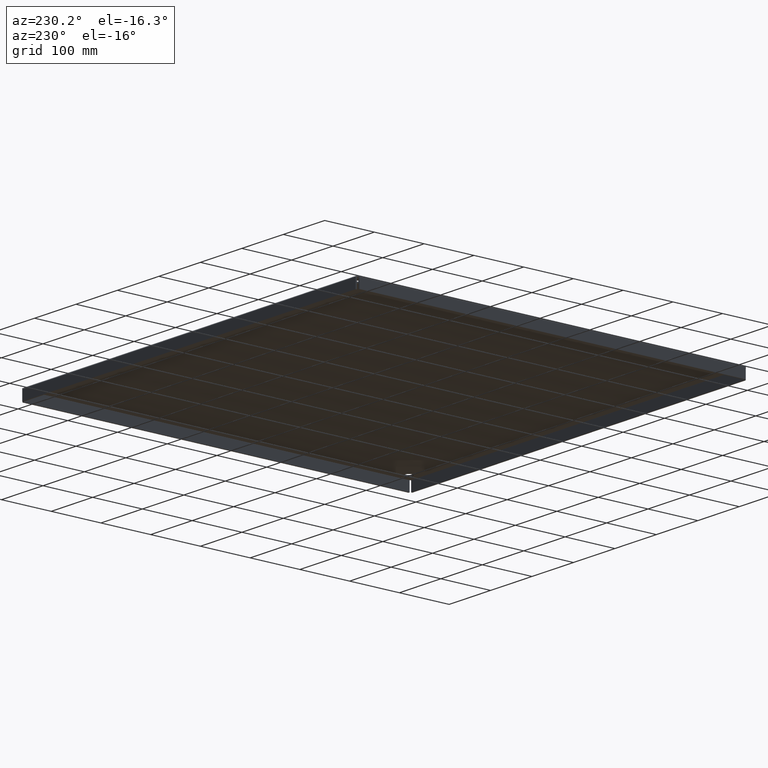
[diagram: clean part render]
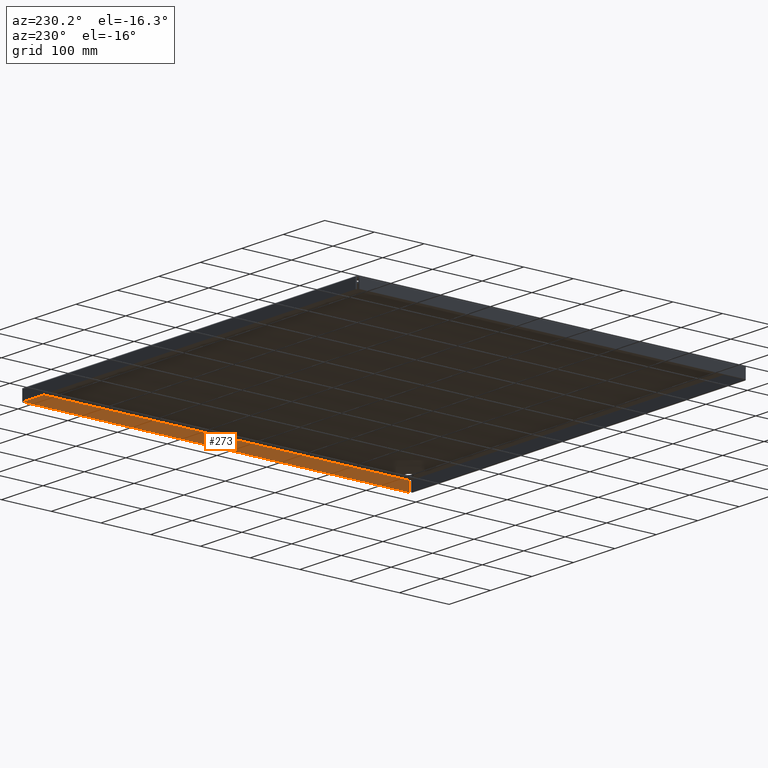
[diagram: same view with one face highlighted and labeled with its STEP entity id]
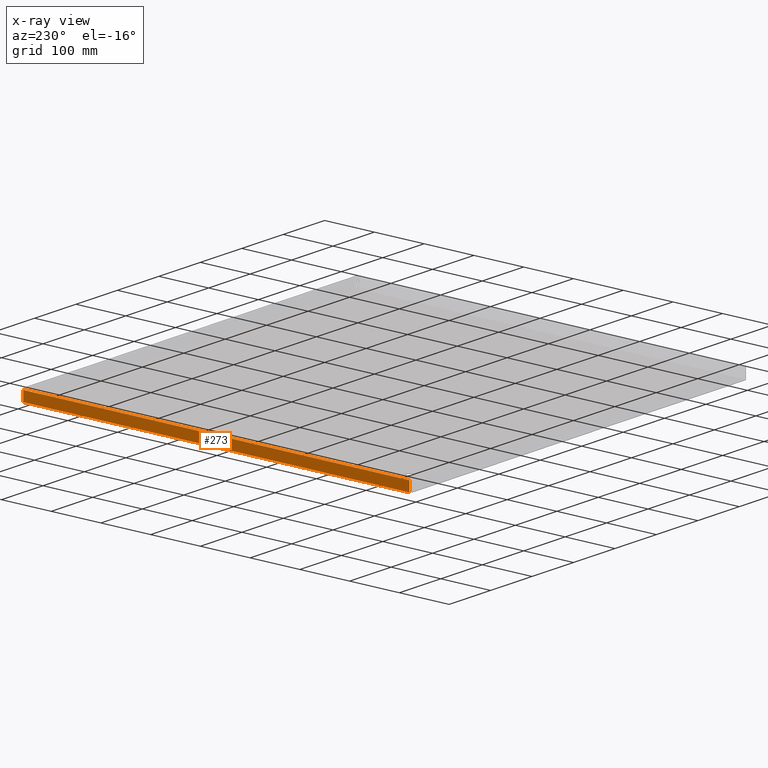
[diagram: x-ray of the same camera — body ghosted, the highlighted face saturated]
A machine part, auxiliary view. The second image highlights one B-rep face of the part: STEP entity #273.
The next image is the same camera in x-ray: the body ghosted, the highlighted face saturated — about 0% of this face is hidden behind the body in this view.
In plain terms, the highlighted planar face has unit normal (1, 0, 0).
Its self-contained STEP definition (entity closure, byte-faithful):
#234=CARTESIAN_POINT('',(31.906250000000032,15.440000000000003,-0.361740214942218));
#235=DIRECTION('',(1.0,0.0,0.0));
#236=DIRECTION('',(0.0,0.0,-1.0));
#237=AXIS2_PLACEMENT_3D('',#234,#235,#236);
#238=PLANE('',#237);
#239=CARTESIAN_POINT('',(31.906250000000025,0.160041260736237,-0.01559999999999));
#240=VERTEX_POINT('',#239);
#241=CARTESIAN_POINT('',(31.906249999999996,30.719958739263781,-0.015599999999979));
#242=VERTEX_POINT('',#241);
#243=CARTESIAN_POINT('',(31.906250000000021,0.160041260736238,-0.01559999999999));
#244=DIRECTION('',(0.0,1.0,0.0));
#245=VECTOR('',#244,30.559917478527545);
#246=LINE('',#243,#245);
#247=EDGE_CURVE('',#240,#242,#246,.T.);
#248=ORIENTED_EDGE('',*,*,#247,.T.);
#249=CARTESIAN_POINT('',(31.90625000000005,30.719958739263781,-0.781249999999978));
#250=VERTEX_POINT('',#249);
#251=CARTESIAN_POINT('',(31.906250000000004,30.719958739263781,-0.015599999999979));
#252=DIRECTION('',(0.0,0.0,-1.0));
#253=VECTOR('',#252,0.765649999999999);
#254=LINE('',#251,#253);
#255=EDGE_CURVE('',#242,#250,#254,.T.);
#256=ORIENTED_EDGE('',*,*,#255,.T.);
#257=CARTESIAN_POINT('',(31.906250000000071,0.160041260736234,-0.781249999999994));
#258=VERTEX_POINT('',#257);
#259=CARTESIAN_POINT('',(31.90625000000005,30.719958739263781,-0.781249999999978));
#260=DIRECTION('',(0.0,-1.0,0.0));
#261=VECTOR('',#260,30.559917478527549);
#262=LINE('',#259,#261);
#263=EDGE_CURVE('',#250,#258,#262,.T.);
#264=ORIENTED_EDGE('',*,*,#263,.T.);
#265=CARTESIAN_POINT('',(31.906250000000025,0.160041260736234,-0.015599999999996));
#266=DIRECTION('',(0.0,0.0,-1.0));
#267=VECTOR('',#266,0.765649999999999);
#268=LINE('',#265,#267);
#269=EDGE_CURVE('',#240,#258,#268,.T.);
#270=ORIENTED_EDGE('',*,*,#269,.F.);
#271=EDGE_LOOP('',(#248,#256,#264,#270));
#272=FACE_OUTER_BOUND('',#271,.T.);
#273=ADVANCED_FACE('',(#272),#238,.F.);